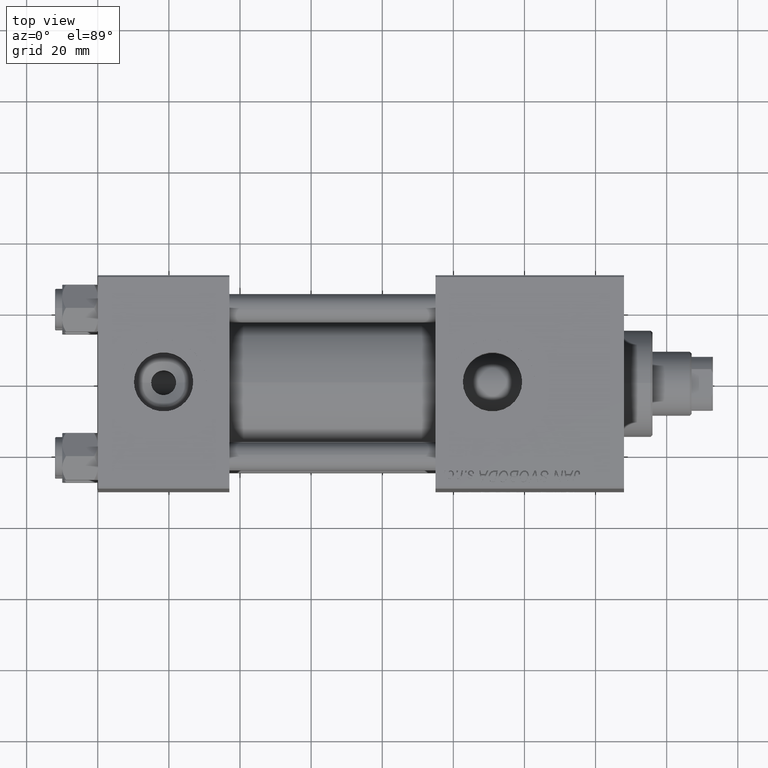
[diagram: clean part render]
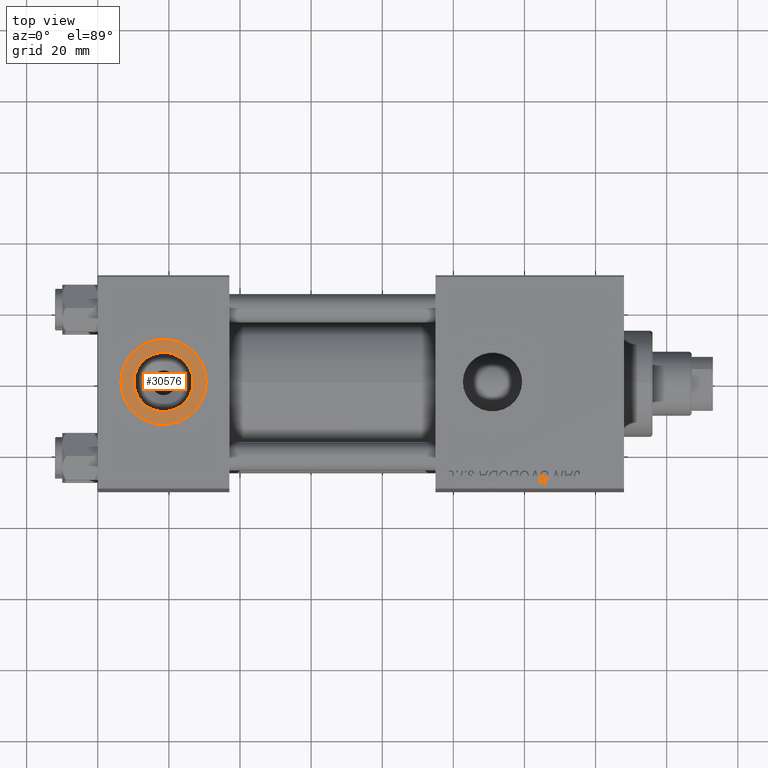
[diagram: same view with one face highlighted and labeled with its STEP entity id]
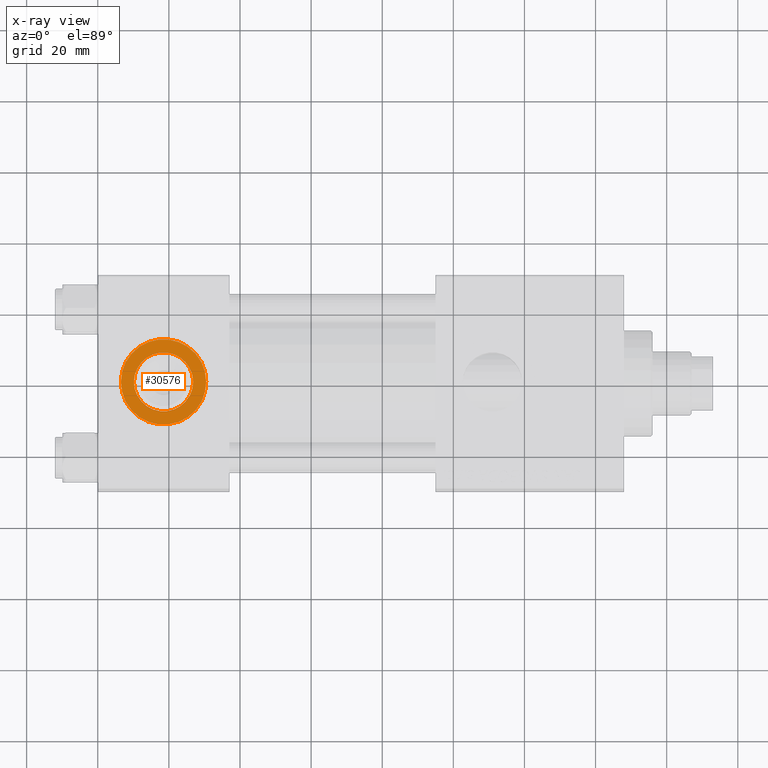
[diagram: x-ray of the same camera — body ghosted, the highlighted face saturated]
A machine part, top view. The second image highlights one B-rep face of the part: STEP entity #30576.
The next image is the same camera in x-ray: the body ghosted, the highlighted face saturated — about 0% of this face is hidden behind the body in this view.
In plain terms, the highlighted planar face has unit normal (0, 0, 1).
Its self-contained STEP definition (entity closure, byte-faithful):
#735 = EDGE_CURVE ( 'NONE', #25002, #46740, #31954, .T. ) ;
#1477 = DIRECTION ( 'NONE',  ( 0.000000000000000000, 0.000000000000000000, 1.000000000000000000 ) ) ;
#2242 = CARTESIAN_POINT ( 'NONE',  ( 18.50000000000000000, -3.469446951953614978E-15, 29.79999999999999716 ) ) ;
#2398 = ORIENTED_EDGE ( 'NONE', *, *, #43749, .F. ) ;
#2902 = EDGE_CURVE ( 'NONE', #8420, #51598, #32024, .T. ) ;
#3632 = CIRCLE ( 'NONE', #21219, 12.00000000000000000 ) ;
#5631 = EDGE_CURVE ( 'NONE', #51598, #8420, #3632, .T. ) ;
#7328 = DIRECTION ( 'NONE',  ( 0.000000000000000000, 0.000000000000000000, 1.000000000000000000 ) ) ;
#8216 = CARTESIAN_POINT ( 'NONE',  ( 30.50000000000000000, -3.469446951953614978E-15, 29.79999999999999716 ) ) ;
#8420 = VERTEX_POINT ( 'NONE', #33571 ) ;
#11006 = AXIS2_PLACEMENT_3D ( 'NONE', #2242, #1477, #38432 ) ;
#11166 = DIRECTION ( 'NONE',  ( 1.000000000000000000, 0.000000000000000000, 0.000000000000000000 ) ) ;
#11519 = PLANE ( 'NONE',  #16659 ) ;
#14481 = ORIENTED_EDGE ( 'NONE', *, *, #735, .F. ) ;
#16557 = EDGE_LOOP ( 'NONE', ( #14481, #2398 ) ) ;
#16659 = AXIS2_PLACEMENT_3D ( 'NONE', #27276, #7328, #31471 ) ;
#19300 = CARTESIAN_POINT ( 'NONE',  ( 18.50000000000000000, -3.469446951953614978E-15, 29.79999999999999716 ) ) ;
#21219 = AXIS2_PLACEMENT_3D ( 'NONE', #19300, #51848, #47392 ) ;
#25002 = VERTEX_POINT ( 'NONE', #39344 ) ;
#26405 = CARTESIAN_POINT ( 'NONE',  ( 10.16999999999999638, -2.449316168263869821E-15, 29.79999999999999716 ) ) ;
#27159 = CIRCLE ( 'NONE', #34678, 8.330000000000000071 ) ;
#27276 = CARTESIAN_POINT ( 'NONE',  ( 18.50000000000000000, -3.469446951953614978E-15, 29.79999999999999716 ) ) ;
#28710 = AXIS2_PLACEMENT_3D ( 'NONE', #40922, #41692, #30151 ) ;
#30151 = DIRECTION ( 'NONE',  ( 1.000000000000000000, 0.000000000000000000, 0.000000000000000000 ) ) ;
#30576 = ADVANCED_FACE ( 'NONE', ( #35138, #51433 ), #11519, .T. ) ;
#30848 = CARTESIAN_POINT ( 'NONE',  ( 18.50000000000000000, -3.469446951953614978E-15, 29.79999999999999716 ) ) ;
#31471 = DIRECTION ( 'NONE',  ( 1.000000000000000000, 0.000000000000000000, -0.000000000000000000 ) ) ;
#31954 = CIRCLE ( 'NONE', #11006, 8.330000000000000071 ) ;
#32024 = CIRCLE ( 'NONE', #28710, 12.00000000000000000 ) ;
#33571 = CARTESIAN_POINT ( 'NONE',  ( 6.499999999999997335, -1.999870792976790833E-15, 29.79999999999999716 ) ) ;
#34678 = AXIS2_PLACEMENT_3D ( 'NONE', #30848, #35304, #11166 ) ;
#35138 = FACE_BOUND ( 'NONE', #16557, .T. ) ;
#35304 = DIRECTION ( 'NONE',  ( 0.000000000000000000, 0.000000000000000000, 1.000000000000000000 ) ) ;
#37932 = ORIENTED_EDGE ( 'NONE', *, *, #5631, .T. ) ;
#38432 = DIRECTION ( 'NONE',  ( 1.000000000000000000, 0.000000000000000000, 0.000000000000000000 ) ) ;
#39344 = CARTESIAN_POINT ( 'NONE',  ( 26.82999999999999829, -3.469446951953614978E-15, 29.79999999999999716 ) ) ;
#40922 = CARTESIAN_POINT ( 'NONE',  ( 18.50000000000000000, -3.469446951953614978E-15, 29.79999999999999716 ) ) ;
#41692 = DIRECTION ( 'NONE',  ( 0.000000000000000000, 0.000000000000000000, 1.000000000000000000 ) ) ;
#43321 = ORIENTED_EDGE ( 'NONE', *, *, #2902, .T. ) ;
#43749 = EDGE_CURVE ( 'NONE', #46740, #25002, #27159, .T. ) ;
#43921 = EDGE_LOOP ( 'NONE', ( #37932, #43321 ) ) ;
#46740 = VERTEX_POINT ( 'NONE', #26405 ) ;
#47392 = DIRECTION ( 'NONE',  ( 1.000000000000000000, 0.000000000000000000, 0.000000000000000000 ) ) ;
#51433 = FACE_OUTER_BOUND ( 'NONE', #43921, .T. ) ;
#51598 = VERTEX_POINT ( 'NONE', #8216 ) ;
#51848 = DIRECTION ( 'NONE',  ( 0.000000000000000000, 0.000000000000000000, 1.000000000000000000 ) ) ;